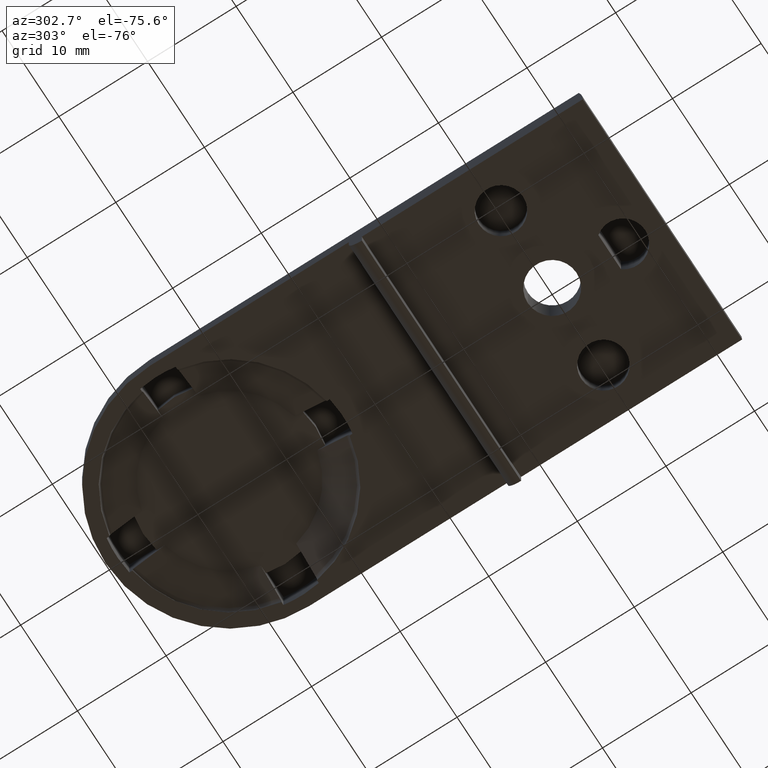
[diagram: clean part render]
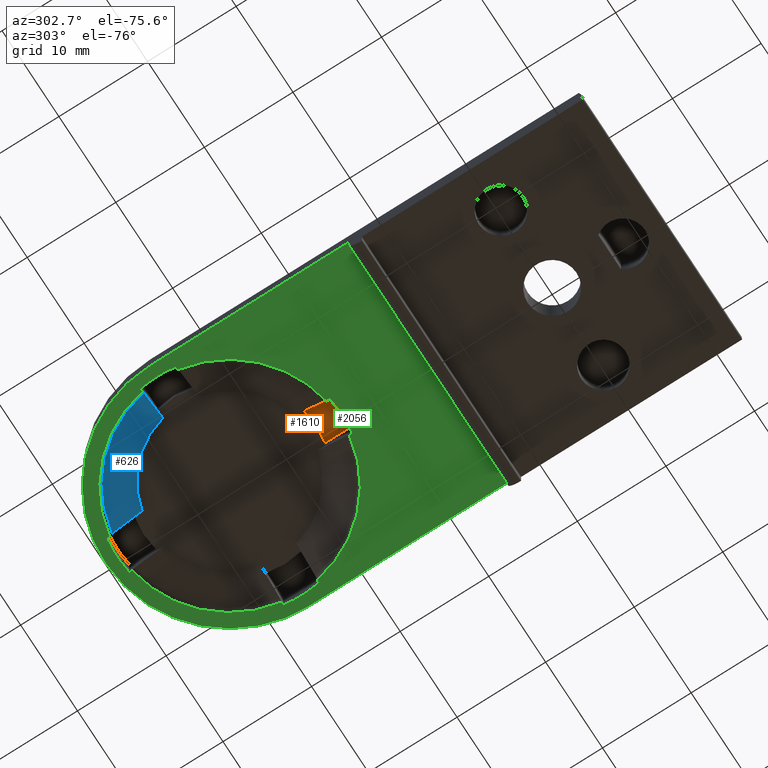
[diagram: same view with three faces highlighted in distinct colors, each labeled with its STEP entity id]
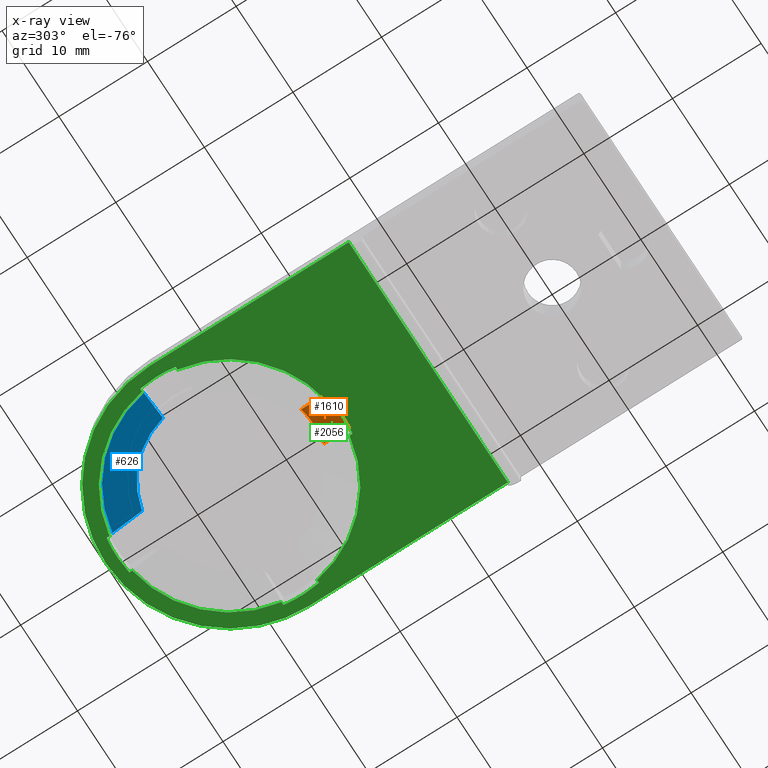
[diagram: x-ray of the same camera — body ghosted, the three highlighted faces saturated]
A machine part, auxiliary view with three faces highlighted in distinct colors.
The next image is the same camera in x-ray (body ghosted, the three faces saturated) — at least one of them is partly hidden behind the body in this view.
Their STEP definitions:

[orange] entity #1610 — the highlighted planar face has unit normal (0, 0, -1).
#898=CARTESIAN_POINT('',(2.0,27.060039129477559,4.000000000000004));
#899=VERTEX_POINT('',#898);
#906=CARTESIAN_POINT('',(0.0,26.850510516013287,4.0));
#907=VERTEX_POINT('',#906);
#908=CARTESIAN_POINT('',(0.0,36.500510516013321,4.0));
#909=DIRECTION('',(1.224647E-016,0.0,-1.0));
#910=DIRECTION('',(0.0,-1.0,0.0));
#911=AXIS2_PLACEMENT_3D('',#908,#909,#910);
#912=CIRCLE('',#911,9.650000000000034);
#913=EDGE_CURVE('',#899,#907,#912,.T.);
#924=CARTESIAN_POINT('',(-2.0,27.060039129477559,3.999999999999996));
#925=VERTEX_POINT('',#924);
#926=CARTESIAN_POINT('',(0.0,36.500510516013321,4.0));
#927=DIRECTION('',(1.224647E-016,0.0,-1.0));
#928=DIRECTION('',(0.0,-1.0,0.0));
#929=AXIS2_PLACEMENT_3D('',#926,#927,#928);
#930=CIRCLE('',#929,9.650000000000034);
#931=EDGE_CURVE('',#907,#925,#930,.T.);
#1463=CARTESIAN_POINT('',(2.0,23.830292955907794,3.999999999999996));
#1464=VERTEX_POINT('',#1463);
#1471=CARTESIAN_POINT('',(2.0,27.060039129477548,4.000000000000004));
#1472=DIRECTION('',(0.0,-1.0,0.0));
#1473=VECTOR('',#1472,3.229746173569811);
#1474=LINE('',#1471,#1473);
#1475=EDGE_CURVE('',#899,#1464,#1474,.T.);
#1495=CARTESIAN_POINT('',(-2.0,23.830292955907737,3.999999999999996));
#1496=VERTEX_POINT('',#1495);
#1503=CARTESIAN_POINT('',(3.983197E-016,36.422453215370815,3.999999999999998));
#1504=DIRECTION('',(1.224647E-016,0.0,-1.000000000000000));
#1505=DIRECTION('',(0.156862745098039,-0.987620412506904,1.921015E-017));
#1506=AXIS2_PLACEMENT_3D('',#1503,#1504,#1505);
#1507=CIRCLE('',#1506,12.749999999999986);
#1508=EDGE_CURVE('',#1464,#1496,#1507,.T.);
#1521=CARTESIAN_POINT('',(-2.0,23.830292955907737,3.999999999999996));
#1522=DIRECTION('',(0.0,1.0,0.0));
#1523=VECTOR('',#1522,3.229746173569811);
#1524=LINE('',#1521,#1523);
#1525=EDGE_CURVE('',#1496,#925,#1524,.T.);
#1598=CARTESIAN_POINT('',(2.400120000105289,51.722573215470874,4.0));
#1599=DIRECTION('',(0.0,0.0,-1.0));
#1600=DIRECTION('',(0.0,-1.0,0.0));
#1601=AXIS2_PLACEMENT_3D('',#1598,#1599,#1600);
#1602=PLANE('',#1601);
#1603=ORIENTED_EDGE('',*,*,#1508,.T.);
#1604=ORIENTED_EDGE('',*,*,#1525,.T.);
#1605=ORIENTED_EDGE('',*,*,#931,.F.);
#1606=ORIENTED_EDGE('',*,*,#913,.F.);
#1607=ORIENTED_EDGE('',*,*,#1475,.T.);
#1608=EDGE_LOOP('',(#1603,#1604,#1605,#1606,#1607));
#1609=FACE_OUTER_BOUND('',#1608,.T.);
#1610=ADVANCED_FACE('',(#1609),#1602,.T.);

[blue] entity #626 — the highlighted face is a freeform B-spline surface patch.
#502=CARTESIAN_POINT('',(-11.952842949047863,38.422453215370808,1.583357116465088));
#503=VERTEX_POINT('',#502);
#515=CARTESIAN_POINT('',(-2.0,48.374871080690809,1.583357116465088));
#516=VERTEX_POINT('',#515);
#527=CARTESIAN_POINT('',(0.0,36.421942699357714,1.583357116465088));
#528=DIRECTION('',(1.224647E-016,0.0,-1.0));
#529=DIRECTION('',(0.0,-1.0,0.0));
#530=AXIS2_PLACEMENT_3D('',#527,#528,#529);
#531=CIRCLE('',#530,12.119096372637614);
#532=EDGE_CURVE('',#503,#516,#531,.T.);
#582=CARTESIAN_POINT('',(-11.952862582086100,38.422335906465804,1.583357116465086));
#583=CARTESIAN_POINT('',(-10.525973495522249,46.948364244780628,1.583357116465086));
#584=CARTESIAN_POINT('',(-1.999884429084993,48.374890417790255,1.583357116465088));
#585=CARTESIAN_POINT('',(-8.706462132922699,37.879028614052700,2.999999999999542));
#586=CARTESIAN_POINT('',(-7.667116477040437,44.089385535834388,2.999999999999542));
#587=CARTESIAN_POINT('',(-1.456715320909458,45.128466845573996,2.999999999999543));
#595=(BOUNDED_SURFACE()B_SPLINE_SURFACE(2,1,((#582,#585),(#583,#586),(#584,#587)),.UNSPECIFIED.,.F.,.F.,.U.)B_SPLINE_SURFACE_WITH_KNOTS((3,3),(2,2),(0.0,1.0),(0.0,3.583458629562563),.UNSPECIFIED.)GEOMETRIC_REPRESENTATION_ITEM()RATIONAL_B_SPLINE_SURFACE(((1.0,1.0),(0.814111193366609,0.814111193366609),(1.0,1.0)))REPRESENTATION_ITEM('')SURFACE());
#596=CARTESIAN_POINT('',(-8.597879966022902,38.422453215370808,2.999999999999542));
#597=VERTEX_POINT('',#596);
#598=CARTESIAN_POINT('',(-8.597879966022902,38.422453215370808,2.999999999999542));
#599=CARTESIAN_POINT('',(-9.062468907781749,38.422453215370808,2.805248774040042));
#600=CARTESIAN_POINT('',(-10.181331249462346,38.422453215370808,2.334313359023899));
#601=CARTESIAN_POINT('',(-11.299125656984415,38.422453215370808,1.860849411797972));
#602=CARTESIAN_POINT('',(-11.952842949047863,38.422453215370808,1.583357116465088));
#603=B_SPLINE_CURVE_WITH_KNOTS('',3,(#598,#599,#600,#601,#602),.UNSPECIFIED.,.F.,.U.,(4,1,4),(0.0,1.511270786778775,3.641795621111695),.UNSPECIFIED.);
#604=EDGE_CURVE('',#597,#503,#603,.T.);
#605=ORIENTED_EDGE('',*,*,#604,.T.);
#606=ORIENTED_EDGE('',*,*,#532,.T.);
#607=CARTESIAN_POINT('',(-2.0,45.019941433645783,2.999999999999542));
#608=VERTEX_POINT('',#607);
#609=CARTESIAN_POINT('',(-2.0,48.374871080690809,1.583357116465088));
#610=CARTESIAN_POINT('',(-2.0,47.773214672134770,1.838752243901187));
#611=CARTESIAN_POINT('',(-2.0,46.655457010678845,2.312276115048125));
#612=CARTESIAN_POINT('',(-2.0,45.536678866421084,2.783385634850948));
#613=CARTESIAN_POINT('',(-2.0,45.019941433645783,2.999999999999542));
#614=B_SPLINE_CURVE_WITH_KNOTS('',3,(#609,#610,#611,#612,#613),.UNSPECIFIED.,.F.,.U.,(4,1,4),(0.0,1.960855696314049,3.641764910197379),.UNSPECIFIED.);
#615=EDGE_CURVE('',#516,#608,#614,.T.);
#616=ORIENTED_EDGE('',*,*,#615,.T.);
#617=CARTESIAN_POINT('',(0.0,36.421942699357714,2.999999999999542));
#618=DIRECTION('',(1.224647E-016,0.0,-1.0));
#619=DIRECTION('',(0.0,-1.0,0.0));
#620=AXIS2_PLACEMENT_3D('',#617,#618,#619);
#621=CIRCLE('',#620,8.827546784629305);
#622=EDGE_CURVE('',#597,#608,#621,.T.);
#623=ORIENTED_EDGE('',*,*,#622,.F.);
#624=EDGE_LOOP('',(#605,#606,#616,#623));
#625=FACE_OUTER_BOUND('',#624,.T.);
#626=ADVANCED_FACE('',(#625),#595,.T.);

[green] entity #2056 — the highlighted planar face has unit normal (-0, -0.0011, 1).
#141=CARTESIAN_POINT('',(14.0,36.422453215370808,1.025086370442480));
#142=VERTEX_POINT('',#141);
#149=CARTESIAN_POINT('',(0.119558302681526,50.421942699357714,1.040730069986207));
#150=VERTEX_POINT('',#149);
#151=CARTESIAN_POINT('',(-3.678064E-029,36.422453215370815,1.025086370442477));
#152=DIRECTION('',(1.153317E-016,0.001117447160810,-0.999999375655727));
#153=DIRECTION('',(6.383365E-015,-0.999999375655727,-0.001117447160810));
#154=AXIS2_PLACEMENT_3D('',#151,#152,#153);
#155=ELLIPSE('',#154,14.000008740825285,14.0);
#156=EDGE_CURVE('',#150,#142,#155,.T.);
#175=CARTESIAN_POINT('',(-0.119558302681526,50.421942699357714,1.040730069986207));
#176=VERTEX_POINT('',#175);
#183=CARTESIAN_POINT('',(-14.0,36.422453215370808,1.025086370442477));
#184=VERTEX_POINT('',#183);
#185=CARTESIAN_POINT('',(-3.678064E-029,36.422453215370815,1.025086370442477));
#186=DIRECTION('',(1.153317E-016,0.001117447160810,-0.999999375655727));
#187=DIRECTION('',(6.383365E-015,-0.999999375655727,-0.001117447160810));
#188=AXIS2_PLACEMENT_3D('',#185,#186,#187);
#189=ELLIPSE('',#188,14.000008740825285,14.0);
#190=EDGE_CURVE('',#184,#176,#189,.T.);
#232=CARTESIAN_POINT('',(2.0,48.681305549533874,1.038784998730744));
#233=VERTEX_POINT('',#232);
#240=CARTESIAN_POINT('',(12.259279553366923,38.422453215370808,1.027321266159444));
#241=VERTEX_POINT('',#240);
#242=CARTESIAN_POINT('',(-3.697785E-029,36.421942699357722,1.025085799967453));
#243=DIRECTION('',(-1.153317E-016,-0.001117447160810,0.999999375655727));
#244=DIRECTION('',(-6.383365E-015,0.999999375655727,0.001117447160810));
#245=AXIS2_PLACEMENT_3D('',#242,#243,#244);
#246=ELLIPSE('',#245,12.421439938875261,12.421432183620368);
#247=EDGE_CURVE('',#241,#233,#246,.T.);
#274=CARTESIAN_POINT('',(-12.259279553366923,38.422453215370808,1.027321266159440));
#275=VERTEX_POINT('',#274);
#282=CARTESIAN_POINT('',(-2.0,48.681305549533874,1.038784998730744));
#283=VERTEX_POINT('',#282);
#284=CARTESIAN_POINT('',(-3.697785E-029,36.421942699357722,1.025085799967453));
#285=DIRECTION('',(-1.153317E-016,-0.001117447160810,0.999999375655727));
#286=DIRECTION('',(-6.383365E-015,0.999999375655727,0.001117447160810));
#287=AXIS2_PLACEMENT_3D('',#284,#285,#286);
#288=ELLIPSE('',#287,12.421439938875261,12.421432183620368);
#289=EDGE_CURVE('',#283,#275,#288,.T.);
#1080=CARTESIAN_POINT('',(-12.592160259463071,38.422453215370808,1.027321266159440));
#1081=VERTEX_POINT('',#1080);
#1088=CARTESIAN_POINT('',(-12.259279553366923,38.422453215370808,1.027321266159440));
#1089=DIRECTION('',(-1.0,0.0,0.0));
#1090=VECTOR('',#1089,0.332880706096148);
#1091=LINE('',#1088,#1090);
#1092=EDGE_CURVE('',#275,#1081,#1091,.T.);
#1109=CARTESIAN_POINT('',(12.592160259463071,38.422453215370808,1.027321266159444));
#1110=VERTEX_POINT('',#1109);
#1111=CARTESIAN_POINT('',(12.259279553366923,38.422453215370808,1.027321266159444));
#1112=DIRECTION('',(1.0,0.0,0.0));
#1113=VECTOR('',#1112,0.332880706096148);
#1114=LINE('',#1111,#1113);
#1115=EDGE_CURVE('',#241,#1110,#1114,.T.);
#1140=CARTESIAN_POINT('',(12.592160259462617,34.422453215370808,1.022851474725513));
#1141=VERTEX_POINT('',#1140);
#1142=CARTESIAN_POINT('',(-3.719972E-029,36.422453215370815,1.025086370442480));
#1143=DIRECTION('',(-1.153317E-016,-0.001117447160810,0.999999375655727));
#1144=DIRECTION('',(-6.383365E-015,0.999999375655727,0.001117447160810));
#1145=AXIS2_PLACEMENT_3D('',#1142,#1143,#1144);
#1146=ELLIPSE('',#1145,12.750007960394498,12.750000000000043);
#1147=EDGE_CURVE('',#1141,#1110,#1146,.T.);
#1189=CARTESIAN_POINT('',(12.259446125160139,34.422453215370808,1.022851474725513));
#1190=VERTEX_POINT('',#1189);
#1191=CARTESIAN_POINT('',(12.592160259462617,34.422453215370808,1.022851474725513));
#1192=DIRECTION('',(-1.0,0.0,0.0));
#1193=VECTOR('',#1192,0.332714134302478);
#1194=LINE('',#1191,#1193);
#1195=EDGE_CURVE('',#1141,#1190,#1194,.T.);
#1223=CARTESIAN_POINT('',(-12.259446125160139,34.422453215370808,1.022851474725513));
#1224=VERTEX_POINT('',#1223);
#1231=CARTESIAN_POINT('',(-12.592160259463071,34.422453215370808,1.022851474725513));
#1232=VERTEX_POINT('',#1231);
#1233=CARTESIAN_POINT('',(-12.592160259463071,34.422453215370808,1.022851474725513));
#1234=DIRECTION('',(1.0,0.0,0.0));
#1235=VECTOR('',#1234,0.332714134302933);
#1236=LINE('',#1233,#1235);
#1237=EDGE_CURVE('',#1232,#1224,#1236,.T.);
#1269=CARTESIAN_POINT('',(-3.719972E-029,36.422453215370815,1.025086370442480));
#1270=DIRECTION('',(-1.153317E-016,-0.001117447160810,0.999999375655727));
#1271=DIRECTION('',(-6.383365E-015,0.999999375655727,0.001117447160810));
#1272=AXIS2_PLACEMENT_3D('',#1269,#1270,#1271);
#1273=ELLIPSE('',#1272,12.750007960394498,12.750000000000043);
#1274=EDGE_CURVE('',#1081,#1232,#1273,.T.);
#1310=CARTESIAN_POINT('',(2.0,24.162579849181554,1.011386601204166));
#1311=VERTEX_POINT('',#1310);
#1312=CARTESIAN_POINT('',(-3.697785E-029,36.421942699357722,1.025085799967453));
#1313=DIRECTION('',(-1.153317E-016,-0.001117447160810,0.999999375655727));
#1314=DIRECTION('',(-6.383365E-015,0.999999375655727,0.001117447160810));
#1315=AXIS2_PLACEMENT_3D('',#1312,#1313,#1314);
#1316=ELLIPSE('',#1315,12.421439938875261,12.421432183620368);
#1317=EDGE_CURVE('',#1311,#1190,#1316,.T.);
#1334=CARTESIAN_POINT('',(-2.0,24.162579849181554,1.011386601204162));
#1335=VERTEX_POINT('',#1334);
#1342=CARTESIAN_POINT('',(-3.697785E-029,36.421942699357722,1.025085799967453));
#1343=DIRECTION('',(-1.153317E-016,-0.001117447160810,0.999999375655727));
#1344=DIRECTION('',(-6.383365E-015,0.999999375655727,0.001117447160810));
#1345=AXIS2_PLACEMENT_3D('',#1342,#1343,#1344);
#1346=ELLIPSE('',#1345,12.421439938875261,12.421432183620368);
#1347=EDGE_CURVE('',#1224,#1335,#1346,.T.);
#1426=CARTESIAN_POINT('',(2.0,49.014613474833823,1.039157452958083));
#1427=VERTEX_POINT('',#1426);
#1434=CARTESIAN_POINT('',(2.0,48.681305549533874,1.038784998730744));
#1435=DIRECTION('',(0.0,0.999999375655727,0.001117447160802));
#1436=VECTOR('',#1435,0.333308133398973);
#1437=LINE('',#1434,#1436);
#1438=EDGE_CURVE('',#233,#1427,#1437,.T.);
#1455=CARTESIAN_POINT('',(2.0,23.830292955907794,1.011015287926870));
#1456=VERTEX_POINT('',#1455);
#1457=CARTESIAN_POINT('',(2.0,24.162579849181554,1.011386601204166));
#1458=DIRECTION('',(0.0,-0.999999375655727,-0.001117447160824));
#1459=VECTOR('',#1458,0.332287100735309);
#1460=LINE('',#1457,#1459);
#1461=EDGE_CURVE('',#1311,#1456,#1460,.T.);
#1486=CARTESIAN_POINT('',(-2.0,23.830292955907737,1.011015287926870));
#1487=VERTEX_POINT('',#1486);
#1488=CARTESIAN_POINT('',(-3.678064E-029,36.422453215370815,1.025086370442477));
#1489=DIRECTION('',(-1.153317E-016,-0.001117447160810,0.999999375655727));
#1490=DIRECTION('',(-6.383365E-015,0.999999375655727,0.001117447160810));
#1491=AXIS2_PLACEMENT_3D('',#1488,#1489,#1490);
#1492=ELLIPSE('',#1491,12.750007960394441,12.749999999999986);
#1493=EDGE_CURVE('',#1487,#1456,#1492,.T.);
#1528=CARTESIAN_POINT('',(-2.0,24.162579849181554,1.011386601204162));
#1529=DIRECTION('',(0.0,-0.999999375655727,-0.001117447160813));
#1530=VECTOR('',#1529,0.332287100735366);
#1531=LINE('',#1528,#1530);
#1532=EDGE_CURVE('',#1335,#1487,#1531,.T.);
#1549=CARTESIAN_POINT('',(-2.0,49.014613474833823,1.039157452958083));
#1550=VERTEX_POINT('',#1549);
#1551=CARTESIAN_POINT('',(-2.0,48.681305549533874,1.038784998730744));
#1552=DIRECTION('',(0.0,0.999999375655727,0.001117447160802));
#1553=VECTOR('',#1552,0.333308133398973);
#1554=LINE('',#1551,#1553);
#1555=EDGE_CURVE('',#283,#1550,#1554,.T.);
#1587=CARTESIAN_POINT('',(-3.678064E-029,36.422453215370815,1.025086370442477));
#1588=DIRECTION('',(-1.153317E-016,-0.001117447160810,0.999999375655727));
#1589=DIRECTION('',(-6.383365E-015,0.999999375655727,0.001117447160810));
#1590=AXIS2_PLACEMENT_3D('',#1587,#1588,#1589);
#1591=ELLIPSE('',#1590,12.750007960394441,12.749999999999986);
#1592=EDGE_CURVE('',#1427,#1550,#1591,.T.);
#1963=CARTESIAN_POINT('',(0.119558302681423,50.421942699357714,1.040730069986209));
#1964=DIRECTION('',(-1.0,0.0,0.0));
#1965=VECTOR('',#1964,0.239116605362845);
#1966=LINE('',#1963,#1965);
#1967=EDGE_CURVE('',#150,#176,#1966,.T.);
#1982=CARTESIAN_POINT('',(-14.0,13.972752094244129,1.000000000001105));
#1983=VERTEX_POINT('',#1982);
#1990=CARTESIAN_POINT('',(14.0,13.972752094244129,1.000000000001108));
#1991=VERTEX_POINT('',#1990);
#1992=CARTESIAN_POINT('',(14.0,13.972752094244129,1.000000000001108));
#1993=DIRECTION('',(-1.0,0.0,0.0));
#1994=VECTOR('',#1993,28.0);
#1995=LINE('',#1992,#1994);
#1996=EDGE_CURVE('',#1991,#1983,#1995,.T.);
#2015=CARTESIAN_POINT('',(16.804298400878906,13.972752094244129,1.000000000001108));
#2016=DIRECTION('',(-1.153317E-016,-0.001117447160810,0.999999375655727));
#2017=DIRECTION('',(0.0,0.999999375655727,0.001117447160810));
#2018=AXIS2_PLACEMENT_3D('',#2015,#2016,#2017);
#2019=PLANE('',#2018);
#2020=ORIENTED_EDGE('',*,*,#156,.T.);
#2021=CARTESIAN_POINT('',(14.0,36.422453215370808,1.025086370442480));
#2022=DIRECTION('',(0.0,-0.999999375655727,-0.001117447160810));
#2023=VECTOR('',#2022,22.449715137477767);
#2024=LINE('',#2021,#2023);
#2025=EDGE_CURVE('',#142,#1991,#2024,.T.);
#2026=ORIENTED_EDGE('',*,*,#2025,.T.);
#2027=ORIENTED_EDGE('',*,*,#1996,.T.);
#2028=CARTESIAN_POINT('',(-14.0,36.422453215370808,1.025086370442477));
#2029=DIRECTION('',(0.0,-0.999999375655727,-0.001117447160810));
#2030=VECTOR('',#2029,22.449715137477767);
#2031=LINE('',#2028,#2030);
#2032=EDGE_CURVE('',#184,#1983,#2031,.T.);
#2033=ORIENTED_EDGE('',*,*,#2032,.F.);
#2034=ORIENTED_EDGE('',*,*,#190,.T.);
#2035=ORIENTED_EDGE('',*,*,#1967,.F.);
#2036=EDGE_LOOP('',(#2020,#2026,#2027,#2033,#2034,#2035));
#2037=FACE_OUTER_BOUND('',#2036,.T.);
#2038=ORIENTED_EDGE('',*,*,#247,.T.);
#2039=ORIENTED_EDGE('',*,*,#1438,.T.);
#2040=ORIENTED_EDGE('',*,*,#1592,.T.);
#2041=ORIENTED_EDGE('',*,*,#1555,.F.);
#2042=ORIENTED_EDGE('',*,*,#289,.T.);
#2043=ORIENTED_EDGE('',*,*,#1092,.T.);
#2044=ORIENTED_EDGE('',*,*,#1274,.T.);
#2045=ORIENTED_EDGE('',*,*,#1237,.T.);
#2046=ORIENTED_EDGE('',*,*,#1347,.T.);
#2047=ORIENTED_EDGE('',*,*,#1532,.T.);
#2048=ORIENTED_EDGE('',*,*,#1493,.T.);
#2049=ORIENTED_EDGE('',*,*,#1461,.F.);
#2050=ORIENTED_EDGE('',*,*,#1317,.T.);
#2051=ORIENTED_EDGE('',*,*,#1195,.F.);
#2052=ORIENTED_EDGE('',*,*,#1147,.T.);
#2053=ORIENTED_EDGE('',*,*,#1115,.F.);
#2054=EDGE_LOOP('',(#2038,#2039,#2040,#2041,#2042,#2043,#2044,#2045,#2046,#2047,#2048,#2049,#2050,#2051,#2052,#2053));
#2055=FACE_BOUND('',#2054,.T.);
#2056=ADVANCED_FACE('',(#2037,#2055),#2019,.F.);